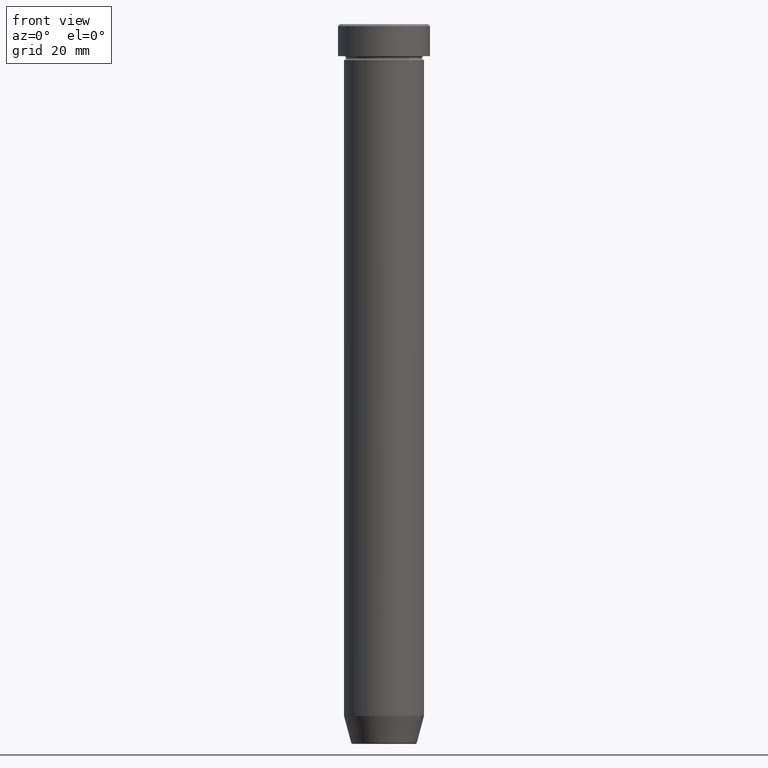
[diagram: clean part render]
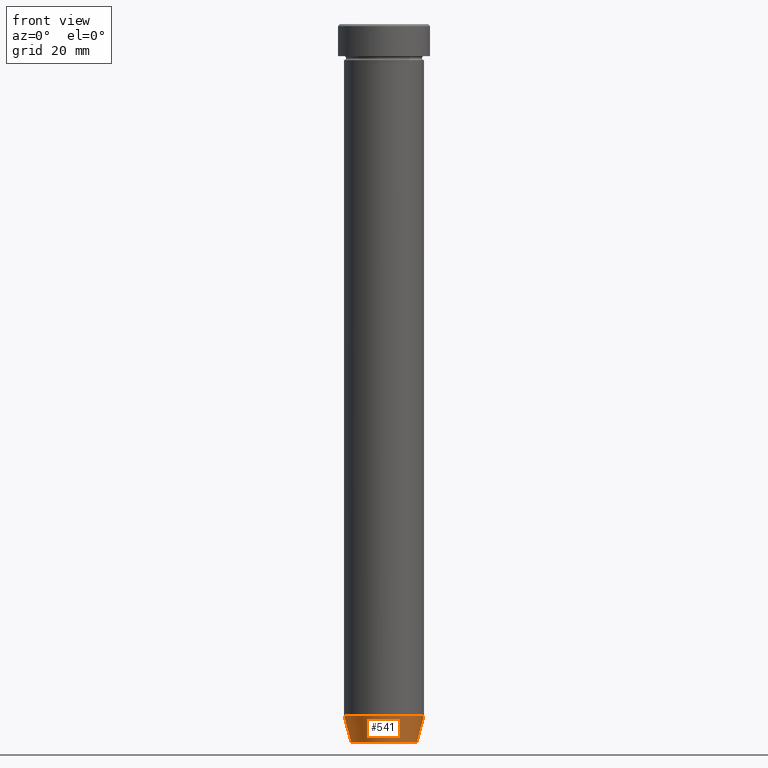
[diagram: same view with one face highlighted and labeled with its STEP entity id]
A machine part, front view. The second image highlights one B-rep face of the part: STEP entity #541.
In plain terms, the highlighted conical surface has half-angle 15 deg.
Its self-contained STEP definition (entity closure, byte-faithful):
#6 = AXIS2_PLACEMENT_3D ( 'NONE', #313, #272, #588 ) ;
#29 = CARTESIAN_POINT ( 'NONE',  ( 0.000000000000000000, 0.000000000000000000, -173.0000000000000000 ) ) ;
#33 = CIRCLE ( 'NONE', #217, 9.999999999999998224 ) ;
#36 = FACE_OUTER_BOUND ( 'NONE', #52, .T. ) ;
#42 = EDGE_CURVE ( 'NONE', #43, #160, #33, .T. ) ;
#43 = VERTEX_POINT ( 'NONE', #249 ) ;
#52 = EDGE_LOOP ( 'NONE', ( #380, #305, #106, #215 ) ) ;
#64 = DIRECTION ( 'NONE',  ( 1.000000000000000000, 0.000000000000000000, 0.000000000000000000 ) ) ;
#106 = ORIENTED_EDGE ( 'NONE', *, *, #264, .T. ) ;
#112 = VERTEX_POINT ( 'NONE', #178 ) ;
#130 = DIRECTION ( 'NONE',  ( 1.000000000000000000, 0.000000000000000000, 0.000000000000000000 ) ) ;
#133 = EDGE_CURVE ( 'NONE', #308, #112, #196, .T. ) ;
#143 = DIRECTION ( 'NONE',  ( 0.2588190451025214611, 0.000000000000000000, 0.9659258262890679791 ) ) ;
#160 = VERTEX_POINT ( 'NONE', #175 ) ;
#162 = DIRECTION ( 'NONE',  ( -0.000000000000000000, -0.000000000000000000, 1.000000000000000000 ) ) ;
#166 = LINE ( 'NONE', #537, #246 ) ;
#175 = CARTESIAN_POINT ( 'NONE',  ( 9.999999999999998224, 0.000000000000000000, -173.0000000000000000 ) ) ;
#178 = CARTESIAN_POINT ( 'NONE',  ( 8.223655072137189492, 0.000000000000000000, -179.6294095225512422 ) ) ;
#187 = CARTESIAN_POINT ( 'NONE',  ( 8.124355652982131915, 0.000000000000000000, -180.0000000000000000 ) ) ;
#196 = CIRCLE ( 'NONE', #6, 8.223655072137189492 ) ;
#198 = CONICAL_SURFACE ( 'NONE', #257, 8.124355652982131915, 0.2617993877991502405 ) ;
#215 = ORIENTED_EDGE ( 'NONE', *, *, #42, .F. ) ;
#217 = AXIS2_PLACEMENT_3D ( 'NONE', #29, #162, #64 ) ;
#219 = DIRECTION ( 'NONE',  ( -0.000000000000000000, -0.000000000000000000, 1.000000000000000000 ) ) ;
#246 = VECTOR ( 'NONE', #534, 1000.000000000000114 ) ;
#249 = CARTESIAN_POINT ( 'NONE',  ( -9.999999999999998224, 1.224646799147353059E-15, -173.0000000000000000 ) ) ;
#257 = AXIS2_PLACEMENT_3D ( 'NONE', #354, #219, #130 ) ;
#264 = EDGE_CURVE ( 'NONE', #112, #160, #341, .T. ) ;
#272 = DIRECTION ( 'NONE',  ( -0.000000000000000000, -0.000000000000000000, 1.000000000000000000 ) ) ;
#298 = CARTESIAN_POINT ( 'NONE',  ( -8.223655072137189492, 1.115877042642911856E-15, -179.6294095225512422 ) ) ;
#305 = ORIENTED_EDGE ( 'NONE', *, *, #133, .T. ) ;
#308 = VERTEX_POINT ( 'NONE', #298 ) ;
#313 = CARTESIAN_POINT ( 'NONE',  ( 0.000000000000000000, 0.000000000000000000, -179.6294095225512422 ) ) ;
#341 = LINE ( 'NONE', #187, #562 ) ;
#354 = CARTESIAN_POINT ( 'NONE',  ( 0.000000000000000000, 0.000000000000000000, -180.0000000000000000 ) ) ;
#380 = ORIENTED_EDGE ( 'NONE', *, *, #413, .F. ) ;
#413 = EDGE_CURVE ( 'NONE', #308, #43, #166, .T. ) ;
#534 = DIRECTION ( 'NONE',  ( -0.2588190451025214611, 3.169619151431774186E-17, 0.9659258262890679791 ) ) ;
#537 = CARTESIAN_POINT ( 'NONE',  ( -8.124355652982131915, 9.949466145559272639E-16, -180.0000000000000000 ) ) ;
#541 = ADVANCED_FACE ( 'NONE', ( #36 ), #198, .T. ) ;
#562 = VECTOR ( 'NONE', #143, 1000.000000000000114 ) ;
#588 = DIRECTION ( 'NONE',  ( -1.000000000000000000, 0.000000000000000000, 0.000000000000000000 ) ) ;